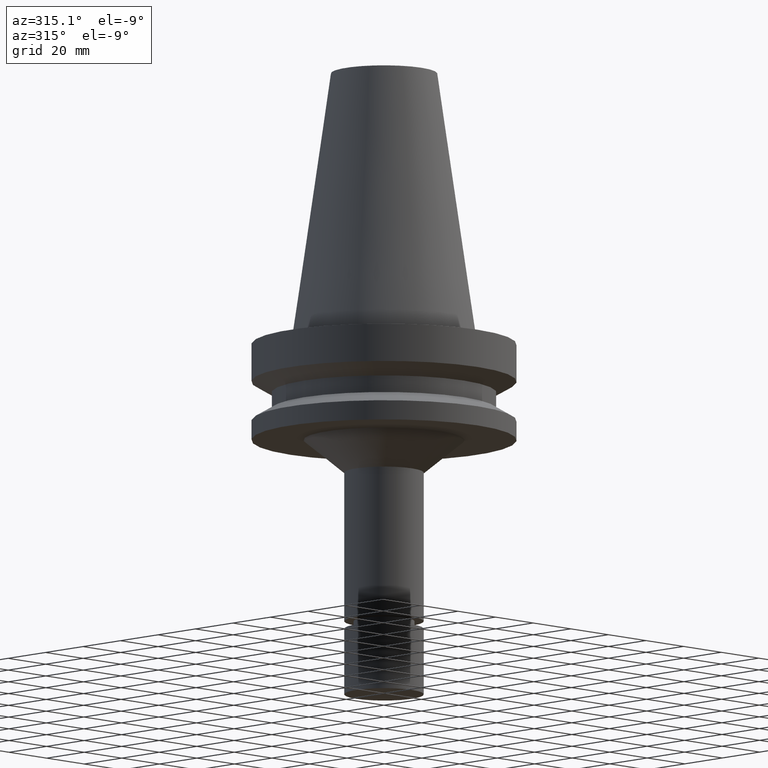
[diagram: clean part render]
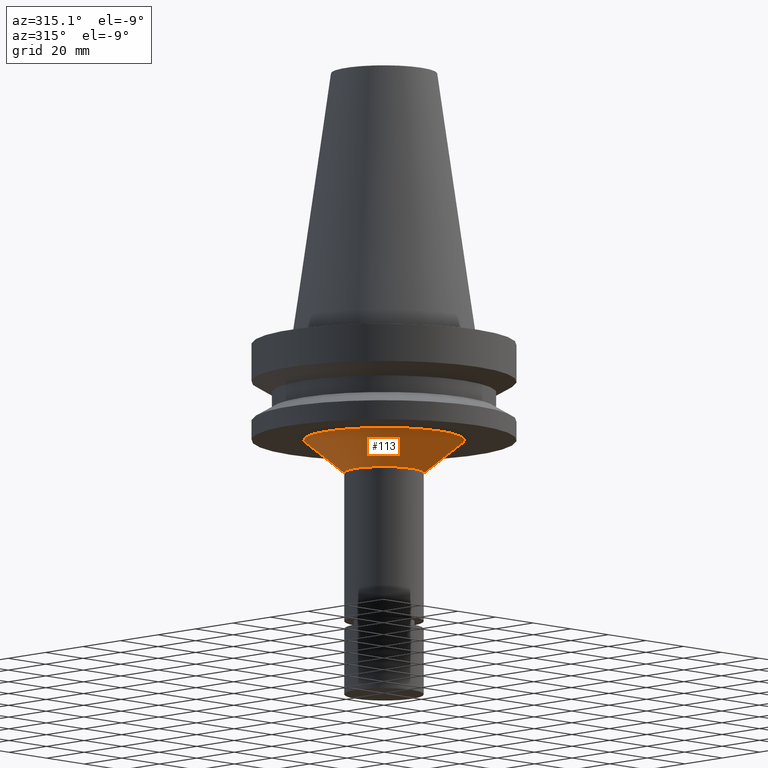
[diagram: same view with one face highlighted and labeled with its STEP entity id]
A machine part, auxiliary view. The second image highlights one B-rep face of the part: STEP entity #113.
In plain terms, the highlighted conical surface has half-angle 50.945 deg.
Its self-contained STEP definition (entity closure, byte-faithful):
#113=ADVANCED_FACE('Unnamed[1]',(#258,#259),#260,.T.);
#160=EDGE_CURVE('Unnamed[1]',#330,#330,#331,.T.);
#168=EDGE_CURVE('Unnamed[1]',#343,#343,#344,.T.);
#258=FACE_BOUND('',#447,.T.);
#259=FACE_BOUND('',#448,.T.);
#260=CONICAL_SURFACE('',#449,22.6818898842099,0.889162048815192);
#330=VERTEX_POINT('',#537);
#331=CIRCLE('',#538,15.0000000000001);
#343=VERTEX_POINT('',#553);
#344=CIRCLE('',#554,30.3637797684196);
#447=EDGE_LOOP('',(#643));
#448=EDGE_LOOP('',(#644));
#449=AXIS2_PLACEMENT_3D('',#645,#646,#647);
#537=CARTESIAN_POINT('',(3.09013157343733E-015,15.0000000000001,-50.4656783586712));
#538=AXIS2_PLACEMENT_3D('',#722,#723,#724);
#553=CARTESIAN_POINT('',(2.32682891837996E-015,30.3637797684196,-37.9999999999998));
#554=AXIS2_PLACEMENT_3D('',#737,#738,#739);
#643=ORIENTED_EDGE('',*,*,#168,.F.);
#644=ORIENTED_EDGE('',*,*,#160,.T.);
#645=CARTESIAN_POINT('',(2.70848024590864E-015,1.52546460739321E-014,-44.2328391793355));
#646=DIRECTION('',(-6.12323399573676E-017,-1.52619998477032E-017,1.0));
#647=DIRECTION('',(-5.76168069387256E-033,1.0,1.52619998477032E-017));
#722=CARTESIAN_POINT('',(3.09013157343733E-015,1.5349771664538E-014,-50.4656783586712));
#723=DIRECTION('',(-6.12323399573677E-017,-1.52619998477253E-017,1.0));
#724=DIRECTION('',(-5.76168069387797E-033,1.0,1.52619998477253E-017));
#737=CARTESIAN_POINT('',(2.32682891837996E-015,1.51595204833261E-014,-37.9999999999999));
#738=DIRECTION('',(-6.12323399573677E-017,-1.52619998477455E-017,1.0));
#739=DIRECTION('',(-5.76168069387284E-033,1.0,1.52619998477455E-017));